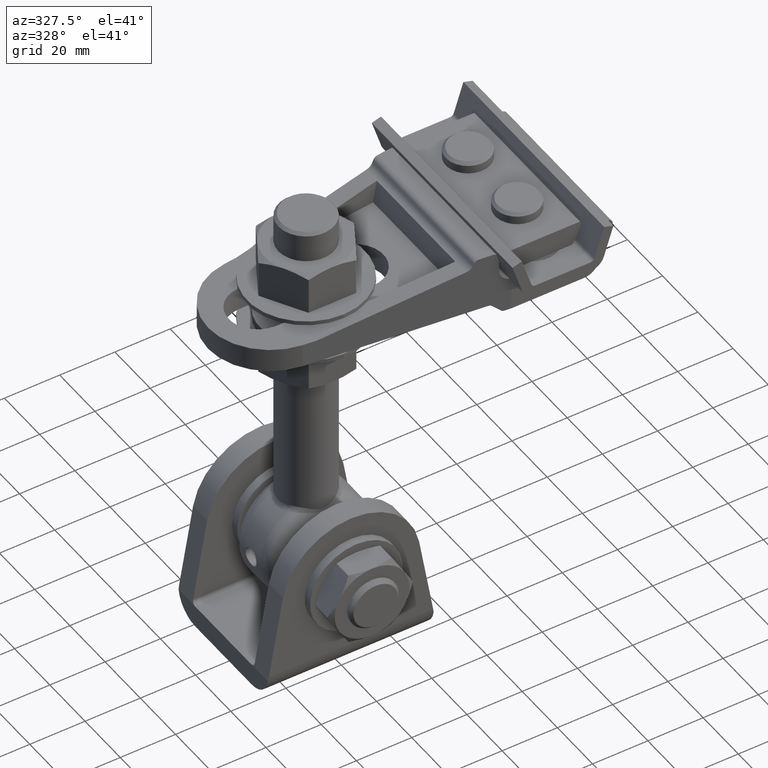
[diagram: clean part render]
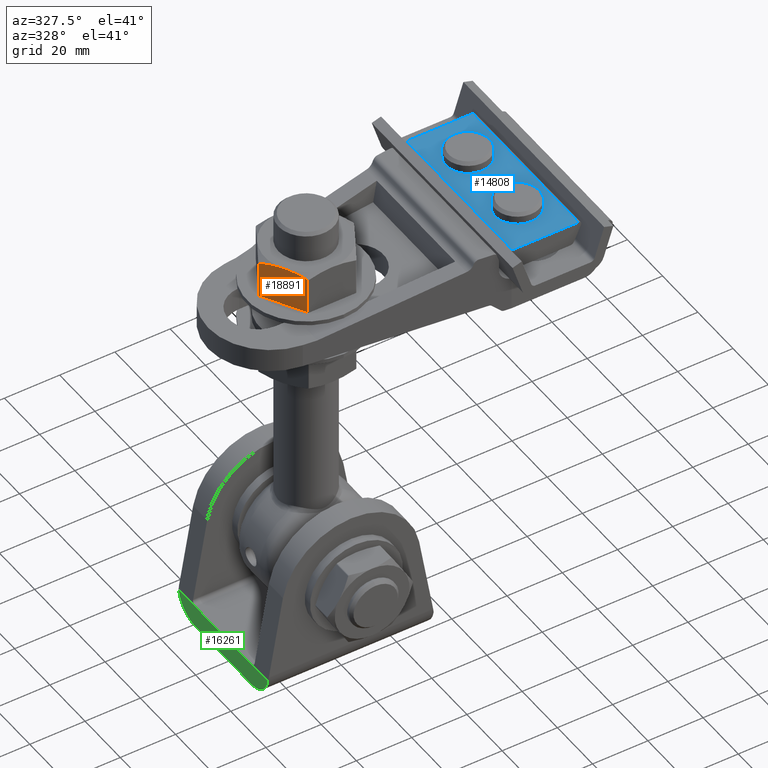
[diagram: same view with three faces highlighted in distinct colors, each labeled with its STEP entity id]
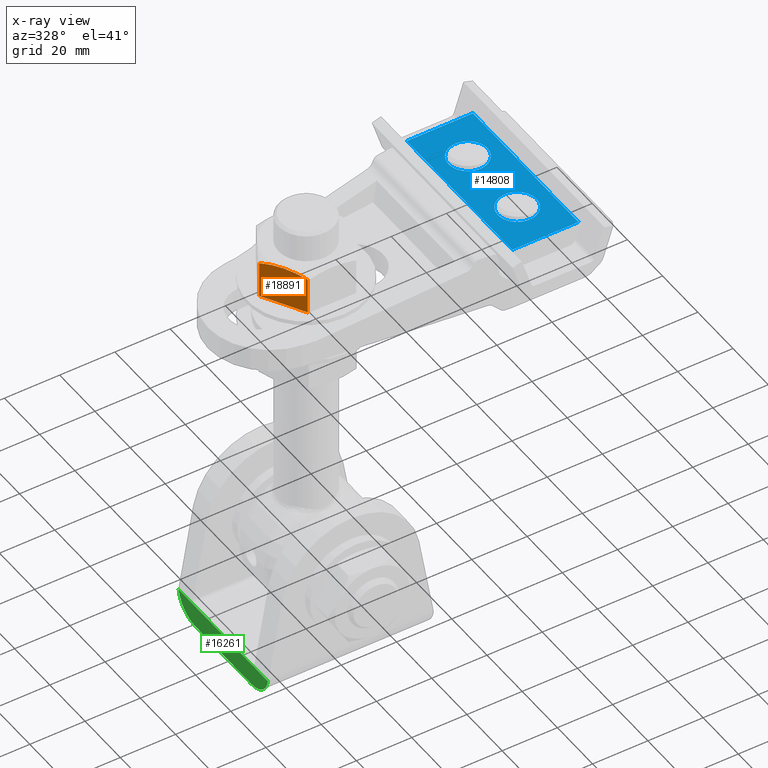
[diagram: x-ray of the same camera — body ghosted, the three highlighted faces saturated]
A machine part, auxiliary view with three faces highlighted in distinct colors.
The next image is the same camera in x-ray (body ghosted, the three faces saturated) — at least one of them is partly hidden behind the body in this view.
Their STEP definitions:

[orange] entity #18891 — the highlighted planar face has unit normal (0.866, 0.5, -0).
#172 = ORIENTED_EDGE ( 'NONE', *, *, #4814, .T. ) ;
#1619 = DIRECTION ( 'NONE',  ( 0.5000000000000003331, 0.000000000000000000, 0.8660254037844383745 ) ) ;
#1731 = CARTESIAN_POINT ( 'NONE',  ( 13.34536019505828364, 8.000000000000010658, -6.885158096851752951 ) ) ;
#1911 = FACE_OUTER_BOUND ( 'NONE', #10829, .T. ) ;
#2092 = CARTESIAN_POINT ( 'NONE',  ( 12.27769715201389999, 8.000000000000008882, -8.734404732768215496 ) ) ;
#3346 = CARTESIAN_POINT ( 'NONE',  ( 14.75823572515146154, 7.771100192624772696, -4.437985893959547568 ) ) ;
#3444 = CARTESIAN_POINT ( 'NONE',  ( 8.804591605141787625, 8.000000000000000000, -14.75000000000000178 ) ) ;
#4716 = CARTESIAN_POINT ( 'NONE',  ( 17.17617050839156789, -6.500000000000000888, -0.2499999999996546374 ) ) ;
#4814 = EDGE_CURVE ( 'NONE', #7720, #5128, #8616, .T. ) ;
#4989 = B_SPLINE_CURVE_WITH_KNOTS ( 'NONE', 3,
 ( #18590, #1731, #10006, #10294, #3346, #13549, #16810, #15247 ),
 .UNSPECIFIED., .F., .F.,
 ( 4, 2, 2, 4 ),
 ( 0.008762996616073659428, 0.01087123203367022263, 0.01297946745126678583, 0.01719593828645990530 ),
 .UNSPECIFIED. ) ;
#5128 = VERTEX_POINT ( 'NONE', #4716 ) ;
#5197 = CARTESIAN_POINT ( 'NONE',  ( 9.489589927465862829, 7.128009959459896017, -13.56354810263526112 ) ) ;
#5633 = EDGE_CURVE ( 'NONE', #13612, #7720, #4989, .T. ) ;
#5660 = EDGE_CURVE ( 'NONE', #12103, #13612, #8531, .T. ) ;
#5671 = ORIENTED_EDGE ( 'NONE', *, *, #5633, .T. ) ;
#6873 = DIRECTION ( 'NONE',  ( -0.8660254037844384856, 0.000000000000000000, 0.5000000000000004441 ) ) ;
#7066 = DIRECTION ( 'NONE',  ( -0.000000000000000000, 1.000000000000000000, -0.000000000000000000 ) ) ;
#7668 = LINE ( 'NONE', #3444, #12720 ) ;
#7720 = VERTEX_POINT ( 'NONE', #11159 ) ;
#8056 = EDGE_CURVE ( 'NONE', #17720, #12103, #7668, .T. ) ;
#8316 = CARTESIAN_POINT ( 'NONE',  ( 12.99038105676657651, 8.000000000000000000, -7.500000000000005329 ) ) ;
#8531 = B_SPLINE_CURVE_WITH_KNOTS ( 'NONE', 3,
 ( #11934, #5197, #8669, #13698, #2092, #10368 ),
 .UNSPECIFIED., .F., .F.,
 ( 4, 2, 4 ),
 ( 0.0002976797144595363671, 0.004530338165266597356, 0.008762996616073659428 ),
 .UNSPECIFIED. ) ;
#8616 = LINE ( 'NONE', #12429, #17101 ) ;
#8669 = CARTESIAN_POINT ( 'NONE',  ( 10.17955870675687891, 7.444278057055712772, -12.36848712126694849 ) ) ;
#10006 = CARTESIAN_POINT ( 'NONE',  ( 13.70198089623494830, 7.970464509671026043, -6.267472923382932493 ) ) ;
#10294 = CARTESIAN_POINT ( 'NONE',  ( 14.40767520565232296, 7.855961152673883952, -5.045174524859803000 ) ) ;
#10368 = CARTESIAN_POINT ( 'NONE',  ( 12.99038105676657651, 8.000000000000000000, -7.500000000000005329 ) ) ;
#10829 = EDGE_LOOP ( 'NONE', ( #18629, #14863, #13175, #5671, #172 ) ) ;
#11159 = CARTESIAN_POINT ( 'NONE',  ( 17.17617050839136539, 6.742537006636514008, -0.2500000000000077161 ) ) ;
#11208 = EDGE_CURVE ( 'NONE', #17720, #5128, #18232, .T. ) ;
#11934 = CARTESIAN_POINT ( 'NONE',  ( 8.804591605141585120, 6.742537006636399433, -14.75000000000035172 ) ) ;
#12103 = VERTEX_POINT ( 'NONE', #12693 ) ;
#12278 = PLANE ( 'NONE',  #15135 ) ;
#12429 = CARTESIAN_POINT ( 'NONE',  ( 17.17617050839136539, 8.000000000000000000, -0.2500000000000065503 ) ) ;
#12693 = CARTESIAN_POINT ( 'NONE',  ( 8.804591605141585120, 6.742537006636399433, -14.75000000000035172 ) ) ;
#12720 = VECTOR ( 'NONE', #7066, 1000.000000000000000 ) ;
#13175 = ORIENTED_EDGE ( 'NONE', *, *, #5660, .T. ) ;
#13549 = CARTESIAN_POINT ( 'NONE',  ( 15.80384537938047451, 7.443203950645605360, -2.626936847950377185 ) ) ;
#13612 = VERTEX_POINT ( 'NONE', #8316 ) ;
#13675 = DIRECTION ( 'NONE',  ( 0.5000000000000003331, 0.000000000000000000, 0.8660254037844383745 ) ) ;
#13698 = CARTESIAN_POINT ( 'NONE',  ( 11.57356463835062499, 7.880936946784329322, -9.953998021694191678 ) ) ;
#13972 = DIRECTION ( 'NONE',  ( 0.000000000000000000, -1.000000000000000000, 0.000000000000000000 ) ) ;
#14863 = ORIENTED_EDGE ( 'NONE', *, *, #8056, .T. ) ;
#15135 = AXIS2_PLACEMENT_3D ( 'NONE', #20569, #6873, #13675 ) ;
#15247 = CARTESIAN_POINT ( 'NONE',  ( 17.17617050839136539, 6.742537006636514008, -0.2500000000000077161 ) ) ;
#16364 = CARTESIAN_POINT ( 'NONE',  ( 8.804591605141688149, -6.500000000000000888, -14.75000000000017764 ) ) ;
#16810 = CARTESIAN_POINT ( 'NONE',  ( 16.49284048604358333, 7.127071147645167137, -1.433562317043536094 ) ) ;
#17101 = VECTOR ( 'NONE', #13972, 1000.000000000000000 ) ;
#17720 = VERTEX_POINT ( 'NONE', #16364 ) ;
#18232 = LINE ( 'NONE', #20046, #20340 ) ;
#18590 = CARTESIAN_POINT ( 'NONE',  ( 12.99038105676657651, 8.000000000000000000, -7.500000000000005329 ) ) ;
#18629 = ORIENTED_EDGE ( 'NONE', *, *, #11208, .F. ) ;
#18891 = ADVANCED_FACE ( 'NONE', ( #1911 ), #12278, .F. ) ;
#20046 = CARTESIAN_POINT ( 'NONE',  ( 17.32050807568877460, -6.500000000000000888, -4.163645666133143976E-15 ) ) ;
#20340 = VECTOR ( 'NONE', #1619, 1000.000000000000114 ) ;
#20569 = CARTESIAN_POINT ( 'NONE',  ( 17.32050807568877460, 8.000000000000000000, -4.163645666133143976E-15 ) ) ;

[blue] entity #14808 — the highlighted planar face has unit normal (-0, -0, -1).
#669 = FACE_OUTER_BOUND ( 'NONE', #1879, .T. ) ;
#1719 = DIRECTION ( 'NONE',  ( 1.000000000000000000, 0.000000000000000000, 0.000000000000000000 ) ) ;
#1835 = CIRCLE ( 'NONE', #18806, 6.999999999999986677 ) ;
#1879 = EDGE_LOOP ( 'NONE', ( #3145, #18068, #10198, #13367 ) ) ;
#1923 = CARTESIAN_POINT ( 'NONE',  ( -11.99999999999999822, -30.00000000000000000, -4.000000000000002665 ) ) ;
#2254 = VERTEX_POINT ( 'NONE', #18894 ) ;
#2271 = CIRCLE ( 'NONE', #13807, 6.999999999999986677 ) ;
#3145 = ORIENTED_EDGE ( 'NONE', *, *, #7373, .T. ) ;
#3194 = DIRECTION ( 'NONE',  ( -1.000000000000000000, -0.000000000000000000, -0.000000000000000000 ) ) ;
#3237 = DIRECTION ( 'NONE',  ( -0.000000000000000000, -1.000000000000000000, -0.000000000000000000 ) ) ;
#3995 = ORIENTED_EDGE ( 'NONE', *, *, #5106, .T. ) ;
#5040 = LINE ( 'NONE', #1923, #6122 ) ;
#5106 = EDGE_CURVE ( 'NONE', #10573, #10573, #2271, .T. ) ;
#5615 = ORIENTED_EDGE ( 'NONE', *, *, #10721, .T. ) ;
#5879 = VERTEX_POINT ( 'NONE', #15841 ) ;
#6014 = CARTESIAN_POINT ( 'NONE',  ( -11.99999999999999822, -30.00000000000000000, -4.000000000000001776 ) ) ;
#6056 = VERTEX_POINT ( 'NONE', #6014 ) ;
#6122 = VECTOR ( 'NONE', #20413, 1000.000000000000000 ) ;
#6205 = DIRECTION ( 'NONE',  ( -0.000000000000000000, -0.000000000000000000, 1.000000000000000000 ) ) ;
#6887 = EDGE_LOOP ( 'NONE', ( #3995 ) ) ;
#7354 = AXIS2_PLACEMENT_3D ( 'NONE', #18923, #17447, #17359 ) ;
#7373 = EDGE_CURVE ( 'NONE', #19944, #6056, #5040, .T. ) ;
#7716 = VECTOR ( 'NONE', #3194, 1000.000000000000000 ) ;
#8067 = CARTESIAN_POINT ( 'NONE',  ( -11.99999999999999822, 30.00000000000000000, -4.000000000000002665 ) ) ;
#8796 = CARTESIAN_POINT ( 'NONE',  ( 6.999999999999989342, -14.00000000000000000, -4.000000000000005329 ) ) ;
#9066 = PLANE ( 'NONE',  #7354 ) ;
#9350 = EDGE_CURVE ( 'NONE', #2254, #19944, #14031, .T. ) ;
#9535 = VECTOR ( 'NONE', #3237, 1000.000000000000000 ) ;
#9675 = DIRECTION ( 'NONE',  ( 1.000000000000000000, 0.000000000000000000, 0.000000000000000000 ) ) ;
#9747 = CARTESIAN_POINT ( 'NONE',  ( 11.99999999999999822, 30.00000000000000000, -4.000000000000002665 ) ) ;
#10198 = ORIENTED_EDGE ( 'NONE', *, *, #17827, .F. ) ;
#10287 = VERTEX_POINT ( 'NONE', #8796 ) ;
#10429 = DIRECTION ( 'NONE',  ( -0.000000000000000000, -0.000000000000000000, 1.000000000000000000 ) ) ;
#10573 = VERTEX_POINT ( 'NONE', #17389 ) ;
#10721 = EDGE_CURVE ( 'NONE', #10287, #10287, #1835, .T. ) ;
#10918 = LINE ( 'NONE', #8067, #7716 ) ;
#11280 = CARTESIAN_POINT ( 'NONE',  ( 11.99999999999999822, -30.00000000000000000, -4.000000000000002665 ) ) ;
#11613 = CARTESIAN_POINT ( 'NONE',  ( -11.99999999999999822, 30.00000000000000000, -4.000000000000001776 ) ) ;
#12949 = CARTESIAN_POINT ( 'NONE',  ( 3.868295729918083248E-15, 14.00000000000000000, -4.000000000000005329 ) ) ;
#13367 = ORIENTED_EDGE ( 'NONE', *, *, #9350, .T. ) ;
#13807 = AXIS2_PLACEMENT_3D ( 'NONE', #12949, #6205, #9675 ) ;
#13875 = FACE_BOUND ( 'NONE', #15988, .T. ) ;
#14031 = LINE ( 'NONE', #9747, #9535 ) ;
#14583 = VECTOR ( 'NONE', #16639, 1000.000000000000000 ) ;
#14808 = ADVANCED_FACE ( 'NONE', ( #20758, #13875, #669 ), #9066, .F. ) ;
#15841 = CARTESIAN_POINT ( 'NONE',  ( -11.99999999999999822, 30.00000000000000000, -4.000000000000001776 ) ) ;
#15988 = EDGE_LOOP ( 'NONE', ( #5615 ) ) ;
#16639 = DIRECTION ( 'NONE',  ( -0.000000000000000000, -1.000000000000000000, -0.000000000000000000 ) ) ;
#17235 = LINE ( 'NONE', #11613, #14583 ) ;
#17359 = DIRECTION ( 'NONE',  ( 1.000000000000000000, 0.000000000000000000, -0.000000000000000000 ) ) ;
#17389 = CARTESIAN_POINT ( 'NONE',  ( 6.999999999999989342, 14.00000000000000000, -4.000000000000005329 ) ) ;
#17447 = DIRECTION ( 'NONE',  ( 0.000000000000000000, 0.000000000000000000, 1.000000000000000000 ) ) ;
#17827 = EDGE_CURVE ( 'NONE', #2254, #5879, #10918, .T. ) ;
#18068 = ORIENTED_EDGE ( 'NONE', *, *, #20509, .F. ) ;
#18806 = AXIS2_PLACEMENT_3D ( 'NONE', #20355, #10429, #1719 ) ;
#18894 = CARTESIAN_POINT ( 'NONE',  ( 11.99999999999999822, 30.00000000000000000, -4.000000000000002665 ) ) ;
#18923 = CARTESIAN_POINT ( 'NONE',  ( -11.99999999999999822, 30.00000000000000000, -4.000000000000002665 ) ) ;
#19944 = VERTEX_POINT ( 'NONE', #11280 ) ;
#20355 = CARTESIAN_POINT ( 'NONE',  ( 3.868295729918083248E-15, -14.00000000000000000, -4.000000000000005329 ) ) ;
#20413 = DIRECTION ( 'NONE',  ( -1.000000000000000000, -0.000000000000000000, -0.000000000000000000 ) ) ;
#20509 = EDGE_CURVE ( 'NONE', #5879, #6056, #17235, .T. ) ;
#20758 = FACE_BOUND ( 'NONE', #6887, .T. ) ;

[green] entity #16261 — the highlighted planar face has unit normal (1, 0, 0).
#821 = DIRECTION ( 'NONE',  ( 1.000000000000000000, 0.000000000000000000, 0.000000000000000000 ) ) ;
#1684 = ORIENTED_EDGE ( 'NONE', *, *, #21382, .T. ) ;
#1699 = ORIENTED_EDGE ( 'NONE', *, *, #2826, .T. ) ;
#1901 = DIRECTION ( 'NONE',  ( -0.000000000000000000, 1.000000000000000000, 0.000000000000000000 ) ) ;
#2119 = CIRCLE ( 'NONE', #21114, 9.500000000000000000 ) ;
#2371 = CARTESIAN_POINT ( 'NONE',  ( -30.00000000000000000, 15.99999999999998224, 7.999999999999956479 ) ) ;
#2667 = DIRECTION ( 'NONE',  ( -0.000000000000000000, 1.000000000000000000, -0.000000000000000000 ) ) ;
#2826 = EDGE_CURVE ( 'NONE', #15046, #10239, #7615, .T. ) ;
#2889 = CARTESIAN_POINT ( 'NONE',  ( -30.00000000000000000, -15.99999999999999645, 9.499999999999994671 ) ) ;
#3378 = ORIENTED_EDGE ( 'NONE', *, *, #21090, .T. ) ;
#3391 = EDGE_CURVE ( 'NONE', #6554, #18858, #18213, .T. ) ;
#3497 = VERTEX_POINT ( 'NONE', #20370 ) ;
#3635 = CARTESIAN_POINT ( 'NONE',  ( -30.00000000000000000, 25.50000000000000000, -5.694607616035192278E-15 ) ) ;
#3647 = DIRECTION ( 'NONE',  ( 0.000000000000000000, 1.826024711554533618E-15, -1.000000000000000000 ) ) ;
#4075 = CARTESIAN_POINT ( 'NONE',  ( -30.00000000000000000, 0.000000000000000000, 0.000000000000000000 ) ) ;
#4258 = VERTEX_POINT ( 'NONE', #2371 ) ;
#4449 = VECTOR ( 'NONE', #2667, 1000.000000000000000 ) ;
#5857 = CARTESIAN_POINT ( 'NONE',  ( -30.00000000000000000, 17.49999999999999645, 8.000000000000000000 ) ) ;
#6186 = CARTESIAN_POINT ( 'NONE',  ( -29.99999999999999289, -25.38083151964685769, 7.999999999999998224 ) ) ;
#6423 = DIRECTION ( 'NONE',  ( 0.000000000000000000, 0.000000000000000000, -1.000000000000000000 ) ) ;
#6554 = VERTEX_POINT ( 'NONE', #12788 ) ;
#6960 = ORIENTED_EDGE ( 'NONE', *, *, #16158, .F. ) ;
#7615 = LINE ( 'NONE', #7740, #4449 ) ;
#7740 = CARTESIAN_POINT ( 'NONE',  ( -29.99999999999999289, -25.50000000000000000, 7.999999999999998224 ) ) ;
#7759 = LINE ( 'NONE', #3635, #20218 ) ;
#8134 = AXIS2_PLACEMENT_3D ( 'NONE', #15390, #17116, #3647 ) ;
#8763 = CARTESIAN_POINT ( 'NONE',  ( -30.00000000000000000, 0.000000000000000000, 7.999999999999956479 ) ) ;
#9784 = LINE ( 'NONE', #8763, #11390 ) ;
#9898 = EDGE_LOOP ( 'NONE', ( #6960, #3378, #1699, #12418, #1684, #12272 ) ) ;
#10239 = VERTEX_POINT ( 'NONE', #21110 ) ;
#11390 = VECTOR ( 'NONE', #1901, 1000.000000000000000 ) ;
#11788 = LINE ( 'NONE', #5857, #17888 ) ;
#12272 = ORIENTED_EDGE ( 'NONE', *, *, #3391, .T. ) ;
#12418 = ORIENTED_EDGE ( 'NONE', *, *, #14358, .F. ) ;
#12624 = AXIS2_PLACEMENT_3D ( 'NONE', #4075, #821, #15902 ) ;
#12788 = CARTESIAN_POINT ( 'NONE',  ( -30.00000000000000000, 25.38083151964684347, 7.999999999999956479 ) ) ;
#14059 = DIRECTION ( 'NONE',  ( -0.000000000000000000, 1.000000000000000000, -0.000000000000000000 ) ) ;
#14358 = EDGE_CURVE ( 'NONE', #4258, #10239, #11788, .T. ) ;
#15046 = VERTEX_POINT ( 'NONE', #6186 ) ;
#15390 = CARTESIAN_POINT ( 'NONE',  ( -30.00000000000000000, 16.00000000000000000, 9.499999999999994671 ) ) ;
#15828 = PLANE ( 'NONE',  #12624 ) ;
#15902 = DIRECTION ( 'NONE',  ( 0.000000000000000000, 0.000000000000000000, -1.000000000000000000 ) ) ;
#16158 = EDGE_CURVE ( 'NONE', #3497, #18858, #7759, .T. ) ;
#16261 = ADVANCED_FACE ( 'NONE', ( #20734 ), #15828, .F. ) ;
#17116 = DIRECTION ( 'NONE',  ( -1.000000000000000000, -0.000000000000000000, -0.000000000000000000 ) ) ;
#17696 = DIRECTION ( 'NONE',  ( 0.000000000000000000, -1.000000000000000000, -9.912705577010326782E-17 ) ) ;
#17888 = VECTOR ( 'NONE', #17696, 1000.000000000000000 ) ;
#18213 = CIRCLE ( 'NONE', #8134, 9.500000000000000000 ) ;
#18572 = CARTESIAN_POINT ( 'NONE',  ( -30.00000000000000000, 16.00000000000000000, -5.694607616035192278E-15 ) ) ;
#18858 = VERTEX_POINT ( 'NONE', #18572 ) ;
#20218 = VECTOR ( 'NONE', #14059, 1000.000000000000000 ) ;
#20370 = CARTESIAN_POINT ( 'NONE',  ( -30.00000000000000000, -15.99999999999999645, -5.694607616035192278E-15 ) ) ;
#20734 = FACE_OUTER_BOUND ( 'NONE', #9898, .T. ) ;
#21090 = EDGE_CURVE ( 'NONE', #3497, #15046, #2119, .T. ) ;
#21110 = CARTESIAN_POINT ( 'NONE',  ( -30.00000000000000000, -15.99999999999999645, 7.999999999999996447 ) ) ;
#21114 = AXIS2_PLACEMENT_3D ( 'NONE', #2889, #21658, #6423 ) ;
#21382 = EDGE_CURVE ( 'NONE', #4258, #6554, #9784, .T. ) ;
#21658 = DIRECTION ( 'NONE',  ( -1.000000000000000000, -0.000000000000000000, -0.000000000000000000 ) ) ;